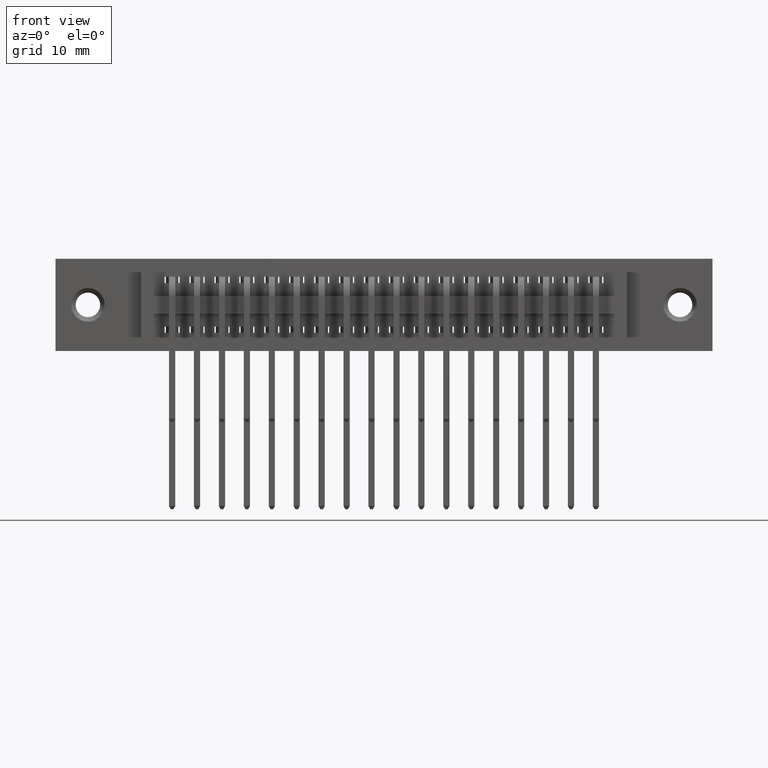
[diagram: clean part render]
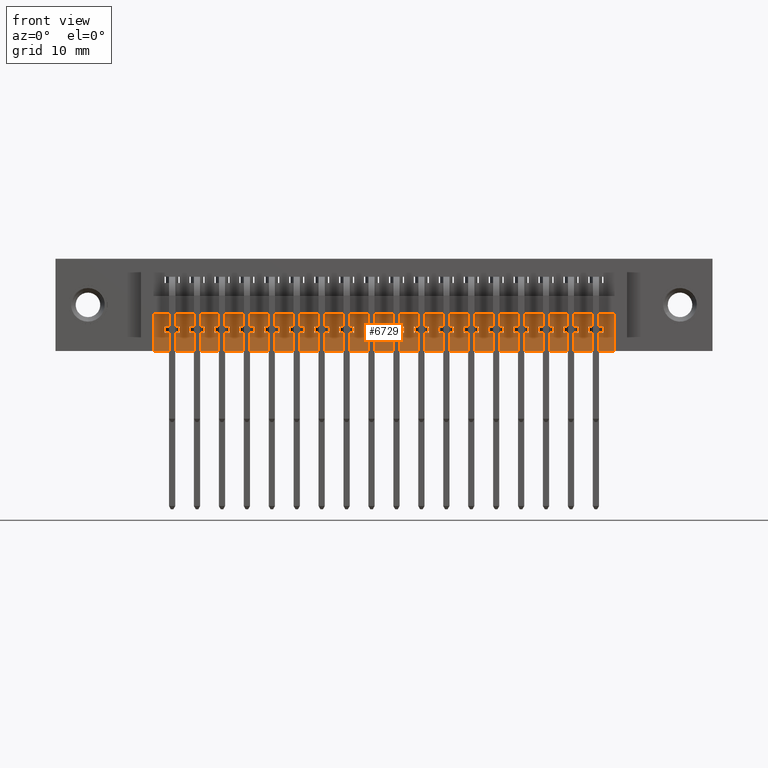
[diagram: same view with one face highlighted and labeled with its STEP entity id]
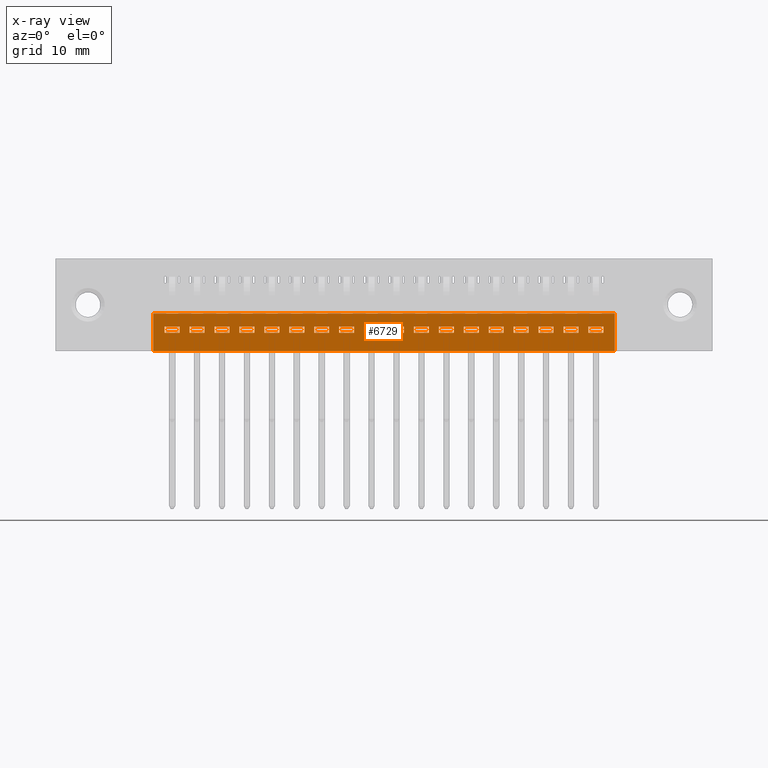
[diagram: x-ray of the same camera — body ghosted, the highlighted face saturated]
A machine part, front view. The second image highlights one B-rep face of the part: STEP entity #6729.
The next image is the same camera in x-ray: the body ghosted, the highlighted face saturated — about 0% of this face is hidden behind the body in this view.
In plain terms, the highlighted planar face has unit normal (0, -1, 0).
Its self-contained STEP definition (entity closure, byte-faithful):
#11 = DIRECTION ( 'NONE',  ( 1.000000000000000000, 0.0000000000000000000, 0.0000000000000000000 ) ) ;
#14 = CARTESIAN_POINT ( 'NONE',  ( 2.242499999999999700, 0.05000000000000000300, -0.2725000000000000200 ) ) ;
#49 = VERTEX_POINT ( 'NONE', #7004 ) ;
#50 = VERTEX_POINT ( 'NONE', #4705 ) ;
#57 = DIRECTION ( 'NONE',  ( 0.0000000000000000000, 0.0000000000000000000, 1.000000000000000000 ) ) ;
#142 = DIRECTION ( 'NONE',  ( 1.000000000000000000, 0.0000000000000000000, 0.0000000000000000000 ) ) ;
#175 = EDGE_CURVE ( 'NONE', #1350, #12171, #239, .T. ) ;
#176 = LINE ( 'NONE', #9727, #8347 ) ;
#186 = VERTEX_POINT ( 'NONE', #13152 ) ;
#209 = EDGE_CURVE ( 'NONE', #5521, #9478, #18262, .T. ) ;
#229 = VERTEX_POINT ( 'NONE', #9674 ) ;
#238 = EDGE_CURVE ( 'NONE', #17816, #20205, #14203, .T. ) ;
#239 = LINE ( 'NONE', #8412, #6916 ) ;
#245 = VECTOR ( 'NONE', #13434, 39.37007874015748100 ) ;
#283 = ORIENTED_EDGE ( 'NONE', *, *, #1574, .F. ) ;
#336 = VERTEX_POINT ( 'NONE', #7828 ) ;
#363 = CARTESIAN_POINT ( 'NONE',  ( 1.937500000000000000, 0.05000000000000001000, -0.2725000000000000200 ) ) ;
#415 = VECTOR ( 'NONE', #14157, 39.37007874015748100 ) ;
#416 = VECTOR ( 'NONE', #18612, 39.37007874015748100 ) ;
#437 = CARTESIAN_POINT ( 'NONE',  ( 2.242499999999999700, 0.05000000000000000300, -0.2974999999999999900 ) ) ;
#500 = VERTEX_POINT ( 'NONE', #11191 ) ;
#513 = ORIENTED_EDGE ( 'NONE', *, *, #7139, .T. ) ;
#534 = EDGE_CURVE ( 'NONE', #6998, #13294, #755, .T. ) ;
#541 = ORIENTED_EDGE ( 'NONE', *, *, #19457, .F. ) ;
#556 = CARTESIAN_POINT ( 'NONE',  ( 0.3924999999999996800, 0.05000000000000000300, -0.3700000000000000000 ) ) ;
#635 = VERTEX_POINT ( 'NONE', #1072 ) ;
#648 = VERTEX_POINT ( 'NONE', #3718 ) ;
#665 = CARTESIAN_POINT ( 'NONE',  ( 1.897500000000000000, 0.05000000000000000300, -0.2975000000000000400 ) ) ;
#670 = CARTESIAN_POINT ( 'NONE',  ( 1.197499999999999800, 0.05000000000000000300, -0.2975000000000001000 ) ) ;
#683 = ORIENTED_EDGE ( 'NONE', *, *, #19822, .F. ) ;
#688 = CARTESIAN_POINT ( 'NONE',  ( 2.242499999999999700, 0.05000000000000000300, -0.2975000000000001000 ) ) ;
#699 = DIRECTION ( 'NONE',  ( 0.0000000000000000000, -0.0000000000000000000, -1.000000000000000000 ) ) ;
#712 = CARTESIAN_POINT ( 'NONE',  ( 0.7974999999999998800, 0.05000000000000000300, -0.2975000000000001000 ) ) ;
#721 = VECTOR ( 'NONE', #18166, 39.37007874015748100 ) ;
#728 = CARTESIAN_POINT ( 'NONE',  ( 1.637500000000000000, 0.05000000000000014800, -0.2975000000000000400 ) ) ;
#755 = LINE ( 'NONE', #18534, #17057 ) ;
#756 = CARTESIAN_POINT ( 'NONE',  ( 1.237500000000000000, 0.05000000000000001000, -0.2725000000000000800 ) ) ;
#773 = ORIENTED_EDGE ( 'NONE', *, *, #1941, .T. ) ;
#800 = VERTEX_POINT ( 'NONE', #9468 ) ;
#820 = EDGE_CURVE ( 'NONE', #18408, #14449, #20356, .T. ) ;
#862 = VERTEX_POINT ( 'NONE', #3411 ) ;
#902 = ORIENTED_EDGE ( 'NONE', *, *, #534, .F. ) ;
#920 = VERTEX_POINT ( 'NONE', #1800 ) ;
#971 = VECTOR ( 'NONE', #11528, 39.37007874015748100 ) ;
#991 = VECTOR ( 'NONE', #11796, 39.37007874015748100 ) ;
#1018 = DIRECTION ( 'NONE',  ( 0.0000000000000000000, 0.0000000000000000000, 1.000000000000000000 ) ) ;
#1072 = CARTESIAN_POINT ( 'NONE',  ( 1.837499999999999900, 0.05000000000000001000, -0.2725000000000000200 ) ) ;
#1073 = CARTESIAN_POINT ( 'NONE',  ( 2.242499999999999700, 0.05000000000000000300, -0.3700000000000000000 ) ) ;
#1075 = EDGE_LOOP ( 'NONE', ( #4684, #10572, #3480, #11824 ) ) ;
#1214 = CARTESIAN_POINT ( 'NONE',  ( 1.137499999999999700, 0.05000000000000000300, -0.3700000000000000000 ) ) ;
#1258 = VECTOR ( 'NONE', #14234, 39.37007874015748100 ) ;
#1261 = FACE_BOUND ( 'NONE', #9703, .T. ) ;
#1273 = CARTESIAN_POINT ( 'NONE',  ( 1.097499999999999900, 0.05000000000000000300, -0.3700000000000000000 ) ) ;
#1282 = DIRECTION ( 'NONE',  ( -1.000000000000000000, 0.0000000000000000000, 0.0000000000000000000 ) ) ;
#1328 = VECTOR ( 'NONE', #13271, 39.37007874015748100 ) ;
#1339 = DIRECTION ( 'NONE',  ( -1.000000000000000000, 0.0000000000000000000, 0.0000000000000000000 ) ) ;
#1350 = VERTEX_POINT ( 'NONE', #7701 ) ;
#1389 = LINE ( 'NONE', #10275, #18089 ) ;
#1406 = LINE ( 'NONE', #15249, #9949 ) ;
#1486 = EDGE_CURVE ( 'NONE', #7322, #13627, #18455, .T. ) ;
#1491 = VECTOR ( 'NONE', #9221, 39.37007874015748100 ) ;
#1515 = EDGE_CURVE ( 'NONE', #14042, #7755, #13430, .T. ) ;
#1522 = CARTESIAN_POINT ( 'NONE',  ( 1.637500000000000000, 0.05000000000000001000, -0.2725000000000000200 ) ) ;
#1555 = ORIENTED_EDGE ( 'NONE', *, *, #18345, .F. ) ;
#1563 = VECTOR ( 'NONE', #10845, 39.37007874015748100 ) ;
#1574 = EDGE_CURVE ( 'NONE', #15970, #19710, #176, .T. ) ;
#1608 = CARTESIAN_POINT ( 'NONE',  ( 0.9974999999999999400, 0.05000000000000001000, -0.2725000000000000800 ) ) ;
#1625 = CARTESIAN_POINT ( 'NONE',  ( 2.242499999999999700, 0.05000000000000000300, -0.2975000000000000400 ) ) ;
#1627 = LINE ( 'NONE', #1273, #5497 ) ;
#1690 = LINE ( 'NONE', #556, #10233 ) ;
#1710 = CARTESIAN_POINT ( 'NONE',  ( 0.4974999999999998900, 0.05000000000000001000, -0.2725000000000000800 ) ) ;
#1722 = VERTEX_POINT ( 'NONE', #363 ) ;
#1745 = VECTOR ( 'NONE', #16139, 39.37007874015748100 ) ;
#1749 = LINE ( 'NONE', #17614, #11279 ) ;
#1754 = EDGE_CURVE ( 'NONE', #16164, #8424, #10045, .T. ) ;
#1763 = LINE ( 'NONE', #2475, #9334 ) ;
#1767 = FACE_BOUND ( 'NONE', #2970, .T. ) ;
#1798 = LINE ( 'NONE', #437, #2307 ) ;
#1800 = CARTESIAN_POINT ( 'NONE',  ( 1.497500000000000100, 0.05000000000000001000, -0.2725000000000000200 ) ) ;
#1818 = ORIENTED_EDGE ( 'NONE', *, *, #13885, .F. ) ;
#1835 = VERTEX_POINT ( 'NONE', #670 ) ;
#1870 = DIRECTION ( 'NONE',  ( 0.0000000000000000000, 0.0000000000000000000, 1.000000000000000000 ) ) ;
#1878 = ORIENTED_EDGE ( 'NONE', *, *, #16798, .F. ) ;
#1889 = CARTESIAN_POINT ( 'NONE',  ( 2.137500000000000200, 0.05000000000000001000, -0.2725000000000000200 ) ) ;
#1941 = EDGE_CURVE ( 'NONE', #14012, #14218, #6133, .T. ) ;
#1959 = VECTOR ( 'NONE', #5665, 39.37007874015748100 ) ;
#1984 = VECTOR ( 'NONE', #7387, 39.37007874015748100 ) ;
#2013 = DIRECTION ( 'NONE',  ( -1.000000000000000000, 0.0000000000000000000, 0.0000000000000000000 ) ) ;
#2114 = DIRECTION ( 'NONE',  ( 0.0000000000000000000, 0.0000000000000000000, 1.000000000000000000 ) ) ;
#2179 = EDGE_CURVE ( 'NONE', #1835, #648, #4852, .T. ) ;
#2229 = VECTOR ( 'NONE', #14434, 39.37007874015748100 ) ;
#2239 = CARTESIAN_POINT ( 'NONE',  ( 1.997499999999999800, 0.05000000000000000300, -0.3700000000000000000 ) ) ;
#2268 = FACE_BOUND ( 'NONE', #11870, .T. ) ;
#2300 = VERTEX_POINT ( 'NONE', #19182 ) ;
#2307 = VECTOR ( 'NONE', #10114, 39.37007874015748100 ) ;
#2389 = EDGE_LOOP ( 'NONE', ( #7831, #6652, #19174, #2482 ) ) ;
#2414 = ORIENTED_EDGE ( 'NONE', *, *, #19883, .F. ) ;
#2431 = VERTEX_POINT ( 'NONE', #728 ) ;
#2465 = ORIENTED_EDGE ( 'NONE', *, *, #11137, .F. ) ;
#2474 = CARTESIAN_POINT ( 'NONE',  ( 1.497500000000000100, 0.05000000000000000300, -0.3700000000000000000 ) ) ;
#2475 = CARTESIAN_POINT ( 'NONE',  ( 2.242499999999999700, 0.05000000000000000300, -0.2725000000000000200 ) ) ;
#2477 = LINE ( 'NONE', #4016, #1959 ) ;
#2482 = ORIENTED_EDGE ( 'NONE', *, *, #209, .F. ) ;
#2496 = ORIENTED_EDGE ( 'NONE', *, *, #9083, .F. ) ;
#2503 = LINE ( 'NONE', #5791, #1984 ) ;
#2544 = LINE ( 'NONE', #3376, #18702 ) ;
#2546 = DIRECTION ( 'NONE',  ( -1.000000000000000000, -0.0000000000000000000, -0.0000000000000000000 ) ) ;
#2551 = CARTESIAN_POINT ( 'NONE',  ( 0.6974999999999999000, 0.05000000000000000300, -0.2975000000000001000 ) ) ;
#2739 = DIRECTION ( 'NONE',  ( 0.0000000000000000000, 0.0000000000000000000, 1.000000000000000000 ) ) ;
#2798 = VECTOR ( 'NONE', #19408, 39.37007874015748100 ) ;
#2882 = CARTESIAN_POINT ( 'NONE',  ( 1.837499999999999900, 0.05000000000000000300, -0.3700000000000000000 ) ) ;
#2925 = VERTEX_POINT ( 'NONE', #10013 ) ;
#2970 = EDGE_LOOP ( 'NONE', ( #541, #7035, #5112, #902 ) ) ;
#2971 = LINE ( 'NONE', #6062, #19543 ) ;
#2982 = CARTESIAN_POINT ( 'NONE',  ( 1.597500000000000100, 0.05000000000000000300, -0.3700000000000000000 ) ) ;
#2995 = VECTOR ( 'NONE', #6612, 39.37007874015748100 ) ;
#3045 = DIRECTION ( 'NONE',  ( 0.0000000000000000000, 0.0000000000000000000, 1.000000000000000000 ) ) ;
#3113 = VERTEX_POINT ( 'NONE', #13584 ) ;
#3115 = VERTEX_POINT ( 'NONE', #18122 ) ;
#3156 = DIRECTION ( 'NONE',  ( -1.000000000000000000, 0.0000000000000000000, 0.0000000000000000000 ) ) ;
#3337 = CARTESIAN_POINT ( 'NONE',  ( 2.242499999999999700, 0.05000000000000000300, -0.2725000000000000200 ) ) ;
#3357 = DIRECTION ( 'NONE',  ( -1.000000000000000000, 0.0000000000000000000, 0.0000000000000000000 ) ) ;
#3376 = CARTESIAN_POINT ( 'NONE',  ( 2.242499999999999700, 0.05000000000000000300, -0.2975000000000001000 ) ) ;
#3411 = CARTESIAN_POINT ( 'NONE',  ( 1.697499999999999800, 0.05000000000000001000, -0.2725000000000000200 ) ) ;
#3417 = EDGE_CURVE ( 'NONE', #5910, #500, #13053, .T. ) ;
#3425 = CARTESIAN_POINT ( 'NONE',  ( 2.242499999999999700, 0.05000000000000000300, -0.2975000000000000400 ) ) ;
#3437 = DIRECTION ( 'NONE',  ( 1.000000000000000000, 0.0000000000000000000, 0.0000000000000000000 ) ) ;
#3456 = CARTESIAN_POINT ( 'NONE',  ( 2.097500000000000100, 0.05000000000000001000, -0.2725000000000000200 ) ) ;
#3480 = ORIENTED_EDGE ( 'NONE', *, *, #12489, .F. ) ;
#3569 = CARTESIAN_POINT ( 'NONE',  ( 1.737500000000000000, 0.05000000000000000300, -0.3700000000000000000 ) ) ;
#3633 = ORIENTED_EDGE ( 'NONE', *, *, #15417, .F. ) ;
#3653 = ORIENTED_EDGE ( 'NONE', *, *, #1754, .F. ) ;
#3671 = CARTESIAN_POINT ( 'NONE',  ( 1.337500000000000100, 0.05000000000000000300, -0.3700000000000000000 ) ) ;
#3718 = CARTESIAN_POINT ( 'NONE',  ( 1.197499999999999800, 0.05000000000000001000, -0.2725000000000000800 ) ) ;
#3732 = EDGE_CURVE ( 'NONE', #17131, #920, #15440, .T. ) ;
#3771 = LINE ( 'NONE', #9022, #7583 ) ;
#3911 = DIRECTION ( 'NONE',  ( 0.0000000000000000000, 0.0000000000000000000, 1.000000000000000000 ) ) ;
#3982 = ORIENTED_EDGE ( 'NONE', *, *, #18105, .F. ) ;
#3999 = CARTESIAN_POINT ( 'NONE',  ( 1.937500000000000000, 0.05000000000000000300, -0.3700000000000000000 ) ) ;
#4016 = CARTESIAN_POINT ( 'NONE',  ( 1.537500000000000100, 0.05000000000000000300, -0.3700000000000000000 ) ) ;
#4022 = ORIENTED_EDGE ( 'NONE', *, *, #8715, .F. ) ;
#4069 = CARTESIAN_POINT ( 'NONE',  ( 0.7974999999999998800, 0.05000000000000001000, -0.2725000000000000800 ) ) ;
#4075 = LINE ( 'NONE', #1073, #19108 ) ;
#4077 = LINE ( 'NONE', #11753, #16522 ) ;
#4094 = ORIENTED_EDGE ( 'NONE', *, *, #820, .F. ) ;
#4099 = CARTESIAN_POINT ( 'NONE',  ( 2.242499999999999700, 0.05000000000000000300, -0.2975000000000000400 ) ) ;
#4162 = DIRECTION ( 'NONE',  ( 0.0000000000000000000, 0.0000000000000000000, 1.000000000000000000 ) ) ;
#4242 = EDGE_CURVE ( 'NONE', #6755, #12111, #13996, .T. ) ;
#4331 = VERTEX_POINT ( 'NONE', #5982 ) ;
#4369 = CARTESIAN_POINT ( 'NONE',  ( 0.4374999999999998900, 0.05000000000000000300, -0.3700000000000000000 ) ) ;
#4407 = EDGE_CURVE ( 'NONE', #15259, #635, #19194, .T. ) ;
#4443 = CARTESIAN_POINT ( 'NONE',  ( 0.9374999999999997800, 0.05000000000000000300, -0.3700000000000000000 ) ) ;
#4538 = ORIENTED_EDGE ( 'NONE', *, *, #20013, .T. ) ;
#4623 = CARTESIAN_POINT ( 'NONE',  ( 2.242499999999999700, 0.05000000000000000300, -0.2725000000000000200 ) ) ;
#4656 = CARTESIAN_POINT ( 'NONE',  ( 0.3924999999999996800, 0.05000000000000000300, -0.2200000000000000000 ) ) ;
#4684 = ORIENTED_EDGE ( 'NONE', *, *, #10244, .F. ) ;
#4705 = CARTESIAN_POINT ( 'NONE',  ( 1.237500000000000000, 0.05000000000000014800, -0.2975000000000001000 ) ) ;
#4830 = VECTOR ( 'NONE', #5747, 39.37007874015748100 ) ;
#4852 = LINE ( 'NONE', #7945, #415 ) ;
#4876 = LINE ( 'NONE', #1214, #16778 ) ;
#4898 = CARTESIAN_POINT ( 'NONE',  ( 1.037499999999999900, 0.05000000000000000300, -0.3700000000000000000 ) ) ;
#4952 = LINE ( 'NONE', #18898, #12788 ) ;
#4999 = EDGE_LOOP ( 'NONE', ( #8009, #6278, #20210, #10725 ) ) ;
#5014 = DIRECTION ( 'NONE',  ( 0.0000000000000000000, 0.0000000000000000000, 1.000000000000000000 ) ) ;
#5049 = EDGE_CURVE ( 'NONE', #14963, #3115, #16342, .T. ) ;
#5112 = ORIENTED_EDGE ( 'NONE', *, *, #15151, .F. ) ;
#5126 = FACE_BOUND ( 'NONE', #6676, .T. ) ;
#5151 = CARTESIAN_POINT ( 'NONE',  ( 2.197499999999999800, 0.05000000000000000300, -0.3700000000000000000 ) ) ;
#5192 = CARTESIAN_POINT ( 'NONE',  ( 0.8374999999999999100, 0.05000000000000014800, -0.2975000000000001000 ) ) ;
#5195 = CARTESIAN_POINT ( 'NONE',  ( 1.037499999999999900, 0.05000000000000001000, -0.2725000000000000800 ) ) ;
#5200 = CARTESIAN_POINT ( 'NONE',  ( 2.097500000000000100, 0.05000000000000000300, -0.3700000000000000000 ) ) ;
#5233 = EDGE_CURVE ( 'NONE', #14433, #16164, #17055, .T. ) ;
#5246 = DIRECTION ( 'NONE',  ( 0.0000000000000000000, 0.0000000000000000000, 1.000000000000000000 ) ) ;
#5286 = ORIENTED_EDGE ( 'NONE', *, *, #7419, .T. ) ;
#5292 = CARTESIAN_POINT ( 'NONE',  ( 1.137499999999999700, 0.05000000000000014800, -0.2975000000000001000 ) ) ;
#5313 = LINE ( 'NONE', #11395, #13617 ) ;
#5346 = DIRECTION ( 'NONE',  ( 0.0000000000000000000, 0.0000000000000000000, 1.000000000000000000 ) ) ;
#5370 = VECTOR ( 'NONE', #5346, 39.37007874015748100 ) ;
#5497 = VECTOR ( 'NONE', #15495, 39.37007874015748100 ) ;
#5521 = VERTEX_POINT ( 'NONE', #665 ) ;
#5524 = EDGE_CURVE ( 'NONE', #17623, #1722, #8402, .T. ) ;
#5624 = LINE ( 'NONE', #16210, #13414 ) ;
#5637 = VECTOR ( 'NONE', #3156, 39.37007874015748100 ) ;
#5640 = FACE_BOUND ( 'NONE', #6265, .T. ) ;
#5665 = DIRECTION ( 'NONE',  ( 0.0000000000000000000, 0.0000000000000000000, 1.000000000000000000 ) ) ;
#5682 = VECTOR ( 'NONE', #17283, 39.37007874015748100 ) ;
#5683 = ORIENTED_EDGE ( 'NONE', *, *, #7353, .T. ) ;
#5747 = DIRECTION ( 'NONE',  ( 1.000000000000000000, 0.0000000000000000000, 0.0000000000000000000 ) ) ;
#5791 = CARTESIAN_POINT ( 'NONE',  ( 0.7374999999999997100, 0.05000000000000000300, -0.3700000000000000000 ) ) ;
#5862 = LINE ( 'NONE', #4443, #1491 ) ;
#5864 = CARTESIAN_POINT ( 'NONE',  ( 2.242499999999999700, 0.05000000000000000300, -0.3700000000000000000 ) ) ;
#5866 = LINE ( 'NONE', #10590, #13154 ) ;
#5872 = CARTESIAN_POINT ( 'NONE',  ( 0.3924999999999996800, 0.05000000000000000300, -0.2200000000000000000 ) ) ;
#5894 = EDGE_CURVE ( 'NONE', #12460, #7322, #13963, .T. ) ;
#5910 = VERTEX_POINT ( 'NONE', #1608 ) ;
#5913 = DIRECTION ( 'NONE',  ( -1.000000000000000000, 0.0000000000000000000, 0.0000000000000000000 ) ) ;
#5982 = CARTESIAN_POINT ( 'NONE',  ( 2.097500000000000100, 0.05000000000000000300, -0.2975000000000000400 ) ) ;
#6062 = CARTESIAN_POINT ( 'NONE',  ( 2.242499999999999700, 0.05000000000000000300, -0.2725000000000000800 ) ) ;
#6133 = LINE ( 'NONE', #5872, #13413 ) ;
#6159 = FACE_BOUND ( 'NONE', #1075, .T. ) ;
#6192 = CARTESIAN_POINT ( 'NONE',  ( 1.397500000000000000, 0.05000000000000001000, -0.2725000000000000800 ) ) ;
#6204 = ORIENTED_EDGE ( 'NONE', *, *, #12380, .T. ) ;
#6262 = ORIENTED_EDGE ( 'NONE', *, *, #16706, .F. ) ;
#6264 = VECTOR ( 'NONE', #14836, 39.37007874015748100 ) ;
#6265 = EDGE_LOOP ( 'NONE', ( #2414, #4538, #10718, #6585 ) ) ;
#6278 = ORIENTED_EDGE ( 'NONE', *, *, #238, .T. ) ;
#6284 = ORIENTED_EDGE ( 'NONE', *, *, #15687, .F. ) ;
#6294 = CARTESIAN_POINT ( 'NONE',  ( 2.197499999999999800, 0.05000000000000000300, -0.2974999999999999900 ) ) ;
#6322 = LINE ( 'NONE', #8403, #17199 ) ;
#6336 = CARTESIAN_POINT ( 'NONE',  ( 1.897500000000000000, 0.05000000000000000300, -0.3700000000000000000 ) ) ;
#6340 = CARTESIAN_POINT ( 'NONE',  ( 2.242499999999999700, 0.05000000000000000300, -0.2975000000000000400 ) ) ;
#6366 = VERTEX_POINT ( 'NONE', #1522 ) ;
#6450 = CARTESIAN_POINT ( 'NONE',  ( 2.037500000000000100, 0.05000000000000014800, -0.2975000000000000400 ) ) ;
#6475 = EDGE_LOOP ( 'NONE', ( #2465, #13026, #6262, #7967 ) ) ;
#6495 = EDGE_CURVE ( 'NONE', #15295, #18223, #2544, .T. ) ;
#6556 = VERTEX_POINT ( 'NONE', #16116 ) ;
#6585 = ORIENTED_EDGE ( 'NONE', *, *, #13581, .F. ) ;
#6612 = DIRECTION ( 'NONE',  ( -1.000000000000000000, 0.0000000000000000000, 0.0000000000000000000 ) ) ;
#6622 = FACE_BOUND ( 'NONE', #7054, .T. ) ;
#6652 = ORIENTED_EDGE ( 'NONE', *, *, #4407, .T. ) ;
#6676 = EDGE_LOOP ( 'NONE', ( #2496, #513, #13579, #4094 ) ) ;
#6703 = CARTESIAN_POINT ( 'NONE',  ( 1.337500000000000100, 0.05000000000000001000, -0.2725000000000000800 ) ) ;
#6729 = ADVANCED_FACE ( 'NONE', ( #19876, #18911, #10819, #6622, #2268, #18458, #14393, #10310, #6159, #1767, #17972, #13929, #9819, #5640, #1261, #17495, #13437, #9337, #5126 ), #11849, .T. ) ;
#6740 = CARTESIAN_POINT ( 'NONE',  ( 0.5974999999999998100, 0.05000000000000000300, -0.3700000000000000000 ) ) ;
#6755 = VERTEX_POINT ( 'NONE', #18046 ) ;
#6757 = VERTEX_POINT ( 'NONE', #8849 ) ;
#6806 = CARTESIAN_POINT ( 'NONE',  ( 2.242499999999999700, 0.05000000000000000300, -0.2975000000000001000 ) ) ;
#6916 = VECTOR ( 'NONE', #13521, 39.37007874015748100 ) ;
#6951 = CARTESIAN_POINT ( 'NONE',  ( 1.737500000000000000, 0.05000000000000014800, -0.2975000000000000400 ) ) ;
#6958 = CARTESIAN_POINT ( 'NONE',  ( 1.637500000000000000, 0.05000000000000000300, -0.3700000000000000000 ) ) ;
#6971 = EDGE_CURVE ( 'NONE', #7148, #18513, #4876, .T. ) ;
#6998 = VERTEX_POINT ( 'NONE', #17046 ) ;
#7004 = CARTESIAN_POINT ( 'NONE',  ( 2.137500000000000200, 0.05000000000000014800, -0.2974999999999999900 ) ) ;
#7029 = EDGE_LOOP ( 'NONE', ( #6284, #5286, #18387, #8291 ) ) ;
#7035 = ORIENTED_EDGE ( 'NONE', *, *, #10677, .T. ) ;
#7054 = EDGE_LOOP ( 'NONE', ( #16560, #18479, #17755, #11094 ) ) ;
#7064 = CARTESIAN_POINT ( 'NONE',  ( 0.8974999999999999600, 0.05000000000000001000, -0.2725000000000000800 ) ) ;
#7071 = VECTOR ( 'NONE', #10490, 39.37007874015748100 ) ;
#7073 = EDGE_CURVE ( 'NONE', #15295, #186, #15332, .T. ) ;
#7081 = DIRECTION ( 'NONE',  ( 0.0000000000000000000, 0.0000000000000000000, 1.000000000000000000 ) ) ;
#7118 = VECTOR ( 'NONE', #8276, 39.37007874015748100 ) ;
#7139 = EDGE_CURVE ( 'NONE', #49, #13744, #1749, .T. ) ;
#7148 = VERTEX_POINT ( 'NONE', #5292 ) ;
#7189 = VERTEX_POINT ( 'NONE', #11614 ) ;
#7196 = ORIENTED_EDGE ( 'NONE', *, *, #11158, .T. ) ;
#7198 = VECTOR ( 'NONE', #5246, 39.37007874015748100 ) ;
#7217 = CARTESIAN_POINT ( 'NONE',  ( 2.242499999999999700, 0.05000000000000000300, -0.3700000000000000000 ) ) ;
#7235 = EDGE_CURVE ( 'NONE', #3113, #7189, #4077, .T. ) ;
#7238 = EDGE_LOOP ( 'NONE', ( #18734, #7196, #19464, #3653 ) ) ;
#7322 = VERTEX_POINT ( 'NONE', #4069 ) ;
#7353 = EDGE_CURVE ( 'NONE', #15183, #13627, #2503, .T. ) ;
#7364 = CARTESIAN_POINT ( 'NONE',  ( 0.4974999999999998300, 0.05000000000000000300, -0.3700000000000000000 ) ) ;
#7372 = CARTESIAN_POINT ( 'NONE',  ( 0.5374999999999999800, 0.05000000000000000300, -0.3700000000000000000 ) ) ;
#7387 = DIRECTION ( 'NONE',  ( 0.0000000000000000000, 0.0000000000000000000, 1.000000000000000000 ) ) ;
#7407 = EDGE_CURVE ( 'NONE', #12752, #14954, #5866, .T. ) ;
#7419 = EDGE_CURVE ( 'NONE', #19549, #3115, #17697, .T. ) ;
#7451 = VECTOR ( 'NONE', #15458, 39.37007874015748100 ) ;
#7505 = LINE ( 'NONE', #9523, #19249 ) ;
#7583 = VECTOR ( 'NONE', #10591, 39.37007874015748100 ) ;
#7596 = LINE ( 'NONE', #4623, #14541 ) ;
#7656 = VECTOR ( 'NONE', #15671, 39.37007874015748100 ) ;
#7701 = CARTESIAN_POINT ( 'NONE',  ( 1.337500000000000100, 0.05000000000000014800, -0.2975000000000001000 ) ) ;
#7755 = VERTEX_POINT ( 'NONE', #5195 ) ;
#7828 = CARTESIAN_POINT ( 'NONE',  ( 1.537500000000000100, 0.05000000000000014800, -0.2975000000000000400 ) ) ;
#7831 = ORIENTED_EDGE ( 'NONE', *, *, #20049, .F. ) ;
#7893 = VECTOR ( 'NONE', #1870, 39.37007874015748100 ) ;
#7935 = ORIENTED_EDGE ( 'NONE', *, *, #12224, .F. ) ;
#7945 = CARTESIAN_POINT ( 'NONE',  ( 1.197499999999999800, 0.05000000000000000300, -0.3700000000000000000 ) ) ;
#7956 = DIRECTION ( 'NONE',  ( 0.0000000000000000000, 0.0000000000000000000, 1.000000000000000000 ) ) ;
#7967 = ORIENTED_EDGE ( 'NONE', *, *, #3732, .F. ) ;
#7993 = EDGE_CURVE ( 'NONE', #6556, #14963, #19330, .T. ) ;
#8009 = ORIENTED_EDGE ( 'NONE', *, *, #9449, .F. ) ;
#8020 = DIRECTION ( 'NONE',  ( 1.000000000000000000, 0.0000000000000000000, 0.0000000000000000000 ) ) ;
#8088 = VECTOR ( 'NONE', #3045, 39.37007874015748100 ) ;
#8135 = VECTOR ( 'NONE', #5014, 39.37007874015748100 ) ;
#8137 = ORIENTED_EDGE ( 'NONE', *, *, #175, .F. ) ;
#8233 = DIRECTION ( 'NONE',  ( -1.000000000000000000, 0.0000000000000000000, 0.0000000000000000000 ) ) ;
#8276 = DIRECTION ( 'NONE',  ( 0.0000000000000000000, 0.0000000000000000000, 1.000000000000000000 ) ) ;
#8291 = ORIENTED_EDGE ( 'NONE', *, *, #7993, .F. ) ;
#8347 = VECTOR ( 'NONE', #11, 39.37007874015748100 ) ;
#8402 = LINE ( 'NONE', #3999, #8893 ) ;
#8403 = CARTESIAN_POINT ( 'NONE',  ( 0.9974999999999999400, 0.05000000000000000300, -0.3700000000000000000 ) ) ;
#8412 = CARTESIAN_POINT ( 'NONE',  ( 2.242499999999999700, 0.05000000000000000300, -0.2975000000000001000 ) ) ;
#8424 = VERTEX_POINT ( 'NONE', #7064 ) ;
#8482 = CARTESIAN_POINT ( 'NONE',  ( 1.997499999999999800, 0.05000000000000001000, -0.2725000000000000200 ) ) ;
#8528 = VERTEX_POINT ( 'NONE', #10476 ) ;
#8631 = CARTESIAN_POINT ( 'NONE',  ( 2.242499999999999700, 0.05000000000000000300, -0.2725000000000000200 ) ) ;
#8715 = EDGE_CURVE ( 'NONE', #10388, #2925, #7596, .T. ) ;
#8760 = CARTESIAN_POINT ( 'NONE',  ( 0.7374999999999998200, 0.05000000000000014800, -0.2975000000000001000 ) ) ;
#8761 = LINE ( 'NONE', #10428, #16468 ) ;
#8849 = CARTESIAN_POINT ( 'NONE',  ( 1.097499999999999900, 0.05000000000000000300, -0.2975000000000001000 ) ) ;
#8873 = VECTOR ( 'NONE', #11231, 39.37007874015748100 ) ;
#8879 = ORIENTED_EDGE ( 'NONE', *, *, #15995, .F. ) ;
#8887 = CARTESIAN_POINT ( 'NONE',  ( 2.037500000000000100, 0.05000000000000000300, -0.3700000000000000000 ) ) ;
#8893 = VECTOR ( 'NONE', #13420, 39.37007874015748100 ) ;
#9022 = CARTESIAN_POINT ( 'NONE',  ( 2.242499999999999700, 0.05000000000000000300, -0.2975000000000000400 ) ) ;
#9056 = LINE ( 'NONE', #14079, #8088 ) ;
#9076 = LINE ( 'NONE', #3671, #5370 ) ;
#9083 = EDGE_CURVE ( 'NONE', #49, #18408, #1798, .T. ) ;
#9221 = DIRECTION ( 'NONE',  ( 0.0000000000000000000, 0.0000000000000000000, 1.000000000000000000 ) ) ;
#9234 = VERTEX_POINT ( 'NONE', #5864 ) ;
#9312 = CARTESIAN_POINT ( 'NONE',  ( 0.8374999999999999100, 0.05000000000000001000, -0.2725000000000000800 ) ) ;
#9334 = VECTOR ( 'NONE', #10466, 39.37007874015748100 ) ;
#9337 = FACE_BOUND ( 'NONE', #4999, .T. ) ;
#9362 = CARTESIAN_POINT ( 'NONE',  ( 0.6974999999999999000, 0.05000000000000001000, -0.2725000000000000800 ) ) ;
#9380 = CARTESIAN_POINT ( 'NONE',  ( 2.242499999999999700, 0.05000000000000000300, -0.2725000000000000200 ) ) ;
#9386 = CARTESIAN_POINT ( 'NONE',  ( 0.9974999999999999400, 0.05000000000000000300, -0.2975000000000001000 ) ) ;
#9387 = EDGE_CURVE ( 'NONE', #8528, #10388, #12293, .T. ) ;
#9415 = DIRECTION ( 'NONE',  ( 0.0000000000000000000, 0.0000000000000000000, 1.000000000000000000 ) ) ;
#9449 = EDGE_CURVE ( 'NONE', #17816, #4331, #11310, .T. ) ;
#9458 = EDGE_LOOP ( 'NONE', ( #13526, #17415, #4022, #14430 ) ) ;
#9468 = CARTESIAN_POINT ( 'NONE',  ( 1.997499999999999800, 0.05000000000000000300, -0.2975000000000000400 ) ) ;
#9478 = VERTEX_POINT ( 'NONE', #14146 ) ;
#9523 = CARTESIAN_POINT ( 'NONE',  ( 2.242499999999999700, 0.05000000000000000300, -0.2975000000000001000 ) ) ;
#9530 = ORIENTED_EDGE ( 'NONE', *, *, #7235, .F. ) ;
#9536 = LINE ( 'NONE', #16579, #16255 ) ;
#9540 = ORIENTED_EDGE ( 'NONE', *, *, #15654, .F. ) ;
#9547 = CARTESIAN_POINT ( 'NONE',  ( 1.437500000000000200, 0.05000000000000014800, -0.2975000000000000400 ) ) ;
#9568 = CARTESIAN_POINT ( 'NONE',  ( 0.5374999999999999800, 0.05000000000000001000, -0.2725000000000000800 ) ) ;
#9579 = LINE ( 'NONE', #9959, #971 ) ;
#9631 = EDGE_CURVE ( 'NONE', #4331, #9658, #12031, .T. ) ;
#9658 = VERTEX_POINT ( 'NONE', #3456 ) ;
#9674 = CARTESIAN_POINT ( 'NONE',  ( 1.697499999999999800, 0.05000000000000000300, -0.2975000000000000400 ) ) ;
#9703 = EDGE_LOOP ( 'NONE', ( #16751, #16904, #15716, #9530 ) ) ;
#9716 = DIRECTION ( 'NONE',  ( 1.000000000000000000, 0.0000000000000000000, 0.0000000000000000000 ) ) ;
#9727 = CARTESIAN_POINT ( 'NONE',  ( 2.242499999999999700, 0.05000000000000000300, -0.2975000000000001000 ) ) ;
#9774 = EDGE_CURVE ( 'NONE', #17097, #9234, #13688, .T. ) ;
#9819 = FACE_BOUND ( 'NONE', #9458, .T. ) ;
#9876 = LINE ( 'NONE', #17878, #1328 ) ;
#9883 = VECTOR ( 'NONE', #19652, 39.37007874015748100 ) ;
#9949 = VECTOR ( 'NONE', #10714, 39.37007874015748100 ) ;
#9959 = CARTESIAN_POINT ( 'NONE',  ( 2.242499999999999700, 0.05000000000000000300, -0.2975000000000001000 ) ) ;
#9983 = VECTOR ( 'NONE', #16009, 39.37007874015748100 ) ;
#10013 = CARTESIAN_POINT ( 'NONE',  ( 1.537500000000000100, 0.05000000000000001000, -0.2725000000000000200 ) ) ;
#10044 = VERTEX_POINT ( 'NONE', #6192 ) ;
#10045 = LINE ( 'NONE', #19195, #17712 ) ;
#10101 = VECTOR ( 'NONE', #7081, 39.37007874015748100 ) ;
#10114 = DIRECTION ( 'NONE',  ( 1.000000000000000000, 0.0000000000000000000, 0.0000000000000000000 ) ) ;
#10233 = VECTOR ( 'NONE', #11795, 39.37007874015748100 ) ;
#10244 = EDGE_CURVE ( 'NONE', #7148, #1835, #9579, .T. ) ;
#10267 = CARTESIAN_POINT ( 'NONE',  ( 2.242499999999999700, 0.05000000000000000300, -0.2725000000000000200 ) ) ;
#10275 = CARTESIAN_POINT ( 'NONE',  ( 1.397500000000000000, 0.05000000000000000300, -0.3700000000000000000 ) ) ;
#10278 = EDGE_CURVE ( 'NONE', #1350, #17945, #9076, .T. ) ;
#10310 = FACE_BOUND ( 'NONE', #13110, .T. ) ;
#10339 = AXIS2_PLACEMENT_3D ( 'NONE', #7217, #10351, #699 ) ;
#10351 = DIRECTION ( 'NONE',  ( 0.0000000000000000000, -1.000000000000000000, 0.0000000000000000000 ) ) ;
#10372 = LINE ( 'NONE', #6958, #18035 ) ;
#10388 = VERTEX_POINT ( 'NONE', #19447 ) ;
#10406 = CARTESIAN_POINT ( 'NONE',  ( 2.242499999999999700, 0.05000000000000000300, -0.2724999999999999600 ) ) ;
#10422 = LINE ( 'NONE', #8631, #6264 ) ;
#10428 = CARTESIAN_POINT ( 'NONE',  ( 2.242499999999999700, 0.05000000000000000300, -0.2725000000000000200 ) ) ;
#10466 = DIRECTION ( 'NONE',  ( -1.000000000000000000, 0.0000000000000000000, 0.0000000000000000000 ) ) ;
#10476 = CARTESIAN_POINT ( 'NONE',  ( 1.597500000000000100, 0.05000000000000000300, -0.2975000000000000400 ) ) ;
#10490 = DIRECTION ( 'NONE',  ( 0.0000000000000000000, 0.0000000000000000000, 1.000000000000000000 ) ) ;
#10511 = EDGE_CURVE ( 'NONE', #10867, #7755, #20081, .T. ) ;
#10551 = EDGE_CURVE ( 'NONE', #9234, #14012, #4075, .T. ) ;
#10572 = ORIENTED_EDGE ( 'NONE', *, *, #6971, .T. ) ;
#10587 = CARTESIAN_POINT ( 'NONE',  ( 1.037499999999999900, 0.05000000000000014800, -0.2975000000000001000 ) ) ;
#10590 = CARTESIAN_POINT ( 'NONE',  ( 1.437500000000000200, 0.05000000000000000300, -0.3700000000000000000 ) ) ;
#10591 = DIRECTION ( 'NONE',  ( 1.000000000000000000, 0.0000000000000000000, 0.0000000000000000000 ) ) ;
#10677 = EDGE_CURVE ( 'NONE', #50, #11145, #16755, .T. ) ;
#10714 = DIRECTION ( 'NONE',  ( -1.000000000000000000, 0.0000000000000000000, 0.0000000000000000000 ) ) ;
#10718 = ORIENTED_EDGE ( 'NONE', *, *, #17666, .F. ) ;
#10725 = ORIENTED_EDGE ( 'NONE', *, *, #9631, .F. ) ;
#10819 = FACE_BOUND ( 'NONE', #17419, .T. ) ;
#10844 = DIRECTION ( 'NONE',  ( -1.000000000000000000, 0.0000000000000000000, 0.0000000000000000000 ) ) ;
#10845 = DIRECTION ( 'NONE',  ( 0.0000000000000000000, 0.0000000000000000000, 1.000000000000000000 ) ) ;
#10867 = VERTEX_POINT ( 'NONE', #11376 ) ;
#11094 = ORIENTED_EDGE ( 'NONE', *, *, #16003, .F. ) ;
#11137 = EDGE_CURVE ( 'NONE', #12752, #17131, #17218, .T. ) ;
#11145 = VERTEX_POINT ( 'NONE', #756 ) ;
#11158 = EDGE_CURVE ( 'NONE', #14433, #18336, #9536, .T. ) ;
#11191 = CARTESIAN_POINT ( 'NONE',  ( 0.9374999999999998900, 0.05000000000000001000, -0.2725000000000000800 ) ) ;
#11208 = CARTESIAN_POINT ( 'NONE',  ( 0.7974999999999998800, 0.05000000000000000300, -0.3700000000000000000 ) ) ;
#11231 = DIRECTION ( 'NONE',  ( 1.000000000000000000, 0.0000000000000000000, 0.0000000000000000000 ) ) ;
#11260 = ORIENTED_EDGE ( 'NONE', *, *, #5524, .T. ) ;
#11279 = VECTOR ( 'NONE', #13073, 39.37007874015748100 ) ;
#11288 = LINE ( 'NONE', #10267, #2798 ) ;
#11310 = LINE ( 'NONE', #6340, #7656 ) ;
#11376 = CARTESIAN_POINT ( 'NONE',  ( 1.097499999999999900, 0.05000000000000001000, -0.2725000000000000800 ) ) ;
#11395 = CARTESIAN_POINT ( 'NONE',  ( 2.242499999999999700, 0.05000000000000000300, -0.2725000000000000200 ) ) ;
#11423 = ORIENTED_EDGE ( 'NONE', *, *, #1515, .T. ) ;
#11528 = DIRECTION ( 'NONE',  ( 1.000000000000000000, 0.0000000000000000000, 0.0000000000000000000 ) ) ;
#11614 = CARTESIAN_POINT ( 'NONE',  ( 1.797499999999999900, 0.05000000000000001000, -0.2725000000000000200 ) ) ;
#11633 = ORIENTED_EDGE ( 'NONE', *, *, #3417, .F. ) ;
#11753 = CARTESIAN_POINT ( 'NONE',  ( 1.797499999999999900, 0.05000000000000000300, -0.3700000000000000000 ) ) ;
#11795 = DIRECTION ( 'NONE',  ( -0.0000000000000000000, -0.0000000000000000000, -1.000000000000000000 ) ) ;
#11796 = DIRECTION ( 'NONE',  ( 1.000000000000000000, 0.0000000000000000000, 0.0000000000000000000 ) ) ;
#11824 = ORIENTED_EDGE ( 'NONE', *, *, #2179, .F. ) ;
#11849 = PLANE ( 'NONE',  #10339 ) ;
#11861 = EDGE_CURVE ( 'NONE', #336, #8528, #3771, .T. ) ;
#11866 = VECTOR ( 'NONE', #4162, 39.37007874015748100 ) ;
#11870 = EDGE_LOOP ( 'NONE', ( #8879, #5683, #14908, #19912 ) ) ;
#11994 = VECTOR ( 'NONE', #5913, 39.37007874015748100 ) ;
#12018 = ORIENTED_EDGE ( 'NONE', *, *, #17153, .F. ) ;
#12031 = LINE ( 'NONE', #5200, #7893 ) ;
#12071 = DIRECTION ( 'NONE',  ( -1.000000000000000000, 0.0000000000000000000, 0.0000000000000000000 ) ) ;
#12079 = VECTOR ( 'NONE', #19557, 39.37007874015748100 ) ;
#12095 = CARTESIAN_POINT ( 'NONE',  ( 2.242499999999999700, 0.05000000000000000300, -0.2200000000000000000 ) ) ;
#12111 = VERTEX_POINT ( 'NONE', #9568 ) ;
#12171 = VERTEX_POINT ( 'NONE', #14268 ) ;
#12200 = LINE ( 'NONE', #17659, #19313 ) ;
#12224 = EDGE_CURVE ( 'NONE', #19993, #1722, #5313, .T. ) ;
#12293 = LINE ( 'NONE', #2982, #19064 ) ;
#12319 = EDGE_CURVE ( 'NONE', #15967, #186, #12200, .T. ) ;
#12380 = EDGE_CURVE ( 'NONE', #14218, #17097, #1690, .T. ) ;
#12385 = EDGE_LOOP ( 'NONE', ( #683, #11260, #7935, #1818 ) ) ;
#12460 = VERTEX_POINT ( 'NONE', #712 ) ;
#12489 = EDGE_CURVE ( 'NONE', #648, #18513, #8761, .T. ) ;
#12491 = CARTESIAN_POINT ( 'NONE',  ( 0.9374999999999998900, 0.05000000000000014800, -0.2975000000000001000 ) ) ;
#12560 = CARTESIAN_POINT ( 'NONE',  ( 2.242499999999999700, 0.05000000000000000300, -0.2975000000000001000 ) ) ;
#12608 = VECTOR ( 'NONE', #3357, 39.37007874015748100 ) ;
#12699 = CARTESIAN_POINT ( 'NONE',  ( 0.7374999999999998200, 0.05000000000000001000, -0.2725000000000000800 ) ) ;
#12703 = VECTOR ( 'NONE', #9415, 39.37007874015748100 ) ;
#12752 = VERTEX_POINT ( 'NONE', #9547 ) ;
#12763 = ORIENTED_EDGE ( 'NONE', *, *, #9774, .T. ) ;
#12764 = CARTESIAN_POINT ( 'NONE',  ( 2.242499999999999700, 0.05000000000000000300, -0.2975000000000001000 ) ) ;
#12788 = VECTOR ( 'NONE', #8233, 39.37007874015748100 ) ;
#12791 = VECTOR ( 'NONE', #142, 39.37007874015748100 ) ;
#13026 = ORIENTED_EDGE ( 'NONE', *, *, #7407, .T. ) ;
#13053 = LINE ( 'NONE', #14, #12608 ) ;
#13073 = DIRECTION ( 'NONE',  ( 0.0000000000000000000, 0.0000000000000000000, 1.000000000000000000 ) ) ;
#13110 = EDGE_LOOP ( 'NONE', ( #17157, #11423, #13306, #1555 ) ) ;
#13152 = CARTESIAN_POINT ( 'NONE',  ( 0.6374999999999998400, 0.05000000000000001000, -0.2725000000000000800 ) ) ;
#13154 = VECTOR ( 'NONE', #1018, 39.37007874015748100 ) ;
#13253 = EDGE_LOOP ( 'NONE', ( #12763, #17764, #773, #6204 ) ) ;
#13271 = DIRECTION ( 'NONE',  ( 1.000000000000000000, 0.0000000000000000000, 0.0000000000000000000 ) ) ;
#13294 = VERTEX_POINT ( 'NONE', #16506 ) ;
#13306 = ORIENTED_EDGE ( 'NONE', *, *, #10511, .F. ) ;
#13413 = VECTOR ( 'NONE', #2546, 39.37007874015748100 ) ;
#13414 = VECTOR ( 'NONE', #17735, 39.37007874015748100 ) ;
#13420 = DIRECTION ( 'NONE',  ( 0.0000000000000000000, 0.0000000000000000000, 1.000000000000000000 ) ) ;
#13430 = LINE ( 'NONE', #4898, #1258 ) ;
#13434 = DIRECTION ( 'NONE',  ( 1.000000000000000000, 0.0000000000000000000, 0.0000000000000000000 ) ) ;
#13437 = FACE_BOUND ( 'NONE', #12385, .T. ) ;
#13521 = DIRECTION ( 'NONE',  ( 1.000000000000000000, 0.0000000000000000000, 0.0000000000000000000 ) ) ;
#13526 = ORIENTED_EDGE ( 'NONE', *, *, #11861, .F. ) ;
#13579 = ORIENTED_EDGE ( 'NONE', *, *, #19490, .F. ) ;
#13581 = EDGE_CURVE ( 'NONE', #229, #862, #20222, .T. ) ;
#13584 = CARTESIAN_POINT ( 'NONE',  ( 1.797499999999999900, 0.05000000000000000300, -0.2975000000000000400 ) ) ;
#13610 = EDGE_CURVE ( 'NONE', #14042, #6757, #7505, .T. ) ;
#13617 = VECTOR ( 'NONE', #14400, 39.37007874015748100 ) ;
#13626 = CARTESIAN_POINT ( 'NONE',  ( 1.837499999999999900, 0.05000000000000014800, -0.2975000000000000400 ) ) ;
#13627 = VERTEX_POINT ( 'NONE', #12699 ) ;
#13675 = ORIENTED_EDGE ( 'NONE', *, *, #4242, .T. ) ;
#13679 = CARTESIAN_POINT ( 'NONE',  ( 2.037500000000000100, 0.05000000000000001000, -0.2725000000000000200 ) ) ;
#13688 = LINE ( 'NONE', #19379, #991 ) ;
#13691 = ORIENTED_EDGE ( 'NONE', *, *, #16768, .F. ) ;
#13744 = VERTEX_POINT ( 'NONE', #1889 ) ;
#13786 = ORIENTED_EDGE ( 'NONE', *, *, #15887, .T. ) ;
#13846 = CARTESIAN_POINT ( 'NONE',  ( 2.242499999999999700, 0.05000000000000000300, -0.2725000000000000800 ) ) ;
#13885 = EDGE_CURVE ( 'NONE', #800, #19993, #14964, .T. ) ;
#13929 = FACE_BOUND ( 'NONE', #6475, .T. ) ;
#13963 = LINE ( 'NONE', #11208, #5682 ) ;
#13968 = VECTOR ( 'NONE', #9716, 39.37007874015748100 ) ;
#13982 = DIRECTION ( 'NONE',  ( 0.0000000000000000000, 0.0000000000000000000, 1.000000000000000000 ) ) ;
#13996 = LINE ( 'NONE', #7372, #9883 ) ;
#14012 = VERTEX_POINT ( 'NONE', #12095 ) ;
#14014 = DIRECTION ( 'NONE',  ( 0.0000000000000000000, 0.0000000000000000000, 1.000000000000000000 ) ) ;
#14042 = VERTEX_POINT ( 'NONE', #10587 ) ;
#14079 = CARTESIAN_POINT ( 'NONE',  ( 0.6974999999999999000, 0.05000000000000000300, -0.3700000000000000000 ) ) ;
#14146 = CARTESIAN_POINT ( 'NONE',  ( 1.897500000000000000, 0.05000000000000001000, -0.2725000000000000200 ) ) ;
#14152 = VECTOR ( 'NONE', #1339, 39.37007874015748100 ) ;
#14157 = DIRECTION ( 'NONE',  ( 0.0000000000000000000, 0.0000000000000000000, 1.000000000000000000 ) ) ;
#14177 = CARTESIAN_POINT ( 'NONE',  ( 2.242499999999999700, 0.05000000000000000300, -0.2725000000000000800 ) ) ;
#14203 = LINE ( 'NONE', #8887, #1563 ) ;
#14218 = VERTEX_POINT ( 'NONE', #4656 ) ;
#14234 = DIRECTION ( 'NONE',  ( 0.0000000000000000000, 0.0000000000000000000, 1.000000000000000000 ) ) ;
#14268 = CARTESIAN_POINT ( 'NONE',  ( 1.397500000000000000, 0.05000000000000000300, -0.2975000000000001000 ) ) ;
#14355 = LINE ( 'NONE', #3425, #2229 ) ;
#14356 = CARTESIAN_POINT ( 'NONE',  ( 1.137499999999999700, 0.05000000000000001000, -0.2725000000000000800 ) ) ;
#14374 = LINE ( 'NONE', #6806, #1745 ) ;
#14393 = FACE_BOUND ( 'NONE', #17670, .T. ) ;
#14400 = DIRECTION ( 'NONE',  ( -1.000000000000000000, 0.0000000000000000000, 0.0000000000000000000 ) ) ;
#14417 = CARTESIAN_POINT ( 'NONE',  ( 2.242499999999999700, 0.05000000000000000300, -0.2975000000000000400 ) ) ;
#14430 = ORIENTED_EDGE ( 'NONE', *, *, #9387, .F. ) ;
#14433 = VERTEX_POINT ( 'NONE', #5192 ) ;
#14434 = DIRECTION ( 'NONE',  ( 1.000000000000000000, 0.0000000000000000000, 0.0000000000000000000 ) ) ;
#14449 = VERTEX_POINT ( 'NONE', #17653 ) ;
#14484 = VERTEX_POINT ( 'NONE', #16324 ) ;
#14541 = VECTOR ( 'NONE', #1282, 39.37007874015748100 ) ;
#14740 = DIRECTION ( 'NONE',  ( 0.0000000000000000000, 0.0000000000000000000, 1.000000000000000000 ) ) ;
#14836 = DIRECTION ( 'NONE',  ( -1.000000000000000000, 0.0000000000000000000, 0.0000000000000000000 ) ) ;
#14908 = ORIENTED_EDGE ( 'NONE', *, *, #1486, .F. ) ;
#14910 = LINE ( 'NONE', #1625, #13968 ) ;
#14954 = VERTEX_POINT ( 'NONE', #15842 ) ;
#14963 = VERTEX_POINT ( 'NONE', #1710 ) ;
#14964 = LINE ( 'NONE', #2239, #18560 ) ;
#15105 = DIRECTION ( 'NONE',  ( 0.0000000000000000000, 0.0000000000000000000, 1.000000000000000000 ) ) ;
#15122 = CARTESIAN_POINT ( 'NONE',  ( 1.937500000000000000, 0.05000000000000014800, -0.2975000000000000400 ) ) ;
#15128 = CARTESIAN_POINT ( 'NONE',  ( 2.242499999999999700, 0.05000000000000000300, -0.2725000000000000200 ) ) ;
#15151 = EDGE_CURVE ( 'NONE', #13294, #11145, #11288, .T. ) ;
#15167 = CARTESIAN_POINT ( 'NONE',  ( 0.4374999999999998900, 0.05000000000000014800, -0.2975000000000001000 ) ) ;
#15183 = VERTEX_POINT ( 'NONE', #8760 ) ;
#15219 = CARTESIAN_POINT ( 'NONE',  ( 0.6374999999999998400, 0.05000000000000014800, -0.2975000000000001000 ) ) ;
#15237 = EDGE_CURVE ( 'NONE', #8424, #18336, #1763, .T. ) ;
#15238 = EDGE_CURVE ( 'NONE', #7189, #18260, #17490, .T. ) ;
#15249 = CARTESIAN_POINT ( 'NONE',  ( 2.242499999999999700, 0.05000000000000000300, -0.2725000000000000200 ) ) ;
#15259 = VERTEX_POINT ( 'NONE', #13626 ) ;
#15295 = VERTEX_POINT ( 'NONE', #15219 ) ;
#15332 = LINE ( 'NONE', #20223, #7118 ) ;
#15336 = DIRECTION ( 'NONE',  ( -1.000000000000000000, 0.0000000000000000000, 0.0000000000000000000 ) ) ;
#15417 = EDGE_CURVE ( 'NONE', #10044, #17945, #18208, .T. ) ;
#15440 = LINE ( 'NONE', #2474, #11866 ) ;
#15458 = DIRECTION ( 'NONE',  ( 0.0000000000000000000, 0.0000000000000000000, 1.000000000000000000 ) ) ;
#15495 = DIRECTION ( 'NONE',  ( 0.0000000000000000000, 0.0000000000000000000, 1.000000000000000000 ) ) ;
#15523 = LINE ( 'NONE', #3337, #2995 ) ;
#15623 = CARTESIAN_POINT ( 'NONE',  ( 1.697499999999999800, 0.05000000000000000300, -0.3700000000000000000 ) ) ;
#15654 = EDGE_CURVE ( 'NONE', #6755, #2300, #14374, .T. ) ;
#15671 = DIRECTION ( 'NONE',  ( 1.000000000000000000, 0.0000000000000000000, 0.0000000000000000000 ) ) ;
#15687 = EDGE_CURVE ( 'NONE', #19549, #6556, #5624, .T. ) ;
#15692 = VERTEX_POINT ( 'NONE', #6951 ) ;
#15716 = ORIENTED_EDGE ( 'NONE', *, *, #15238, .F. ) ;
#15842 = CARTESIAN_POINT ( 'NONE',  ( 1.437500000000000200, 0.05000000000000001000, -0.2725000000000000200 ) ) ;
#15887 = EDGE_CURVE ( 'NONE', #15970, #500, #5862, .T. ) ;
#15967 = VERTEX_POINT ( 'NONE', #9362 ) ;
#15970 = VERTEX_POINT ( 'NONE', #12491 ) ;
#15995 = EDGE_CURVE ( 'NONE', #15183, #12460, #20308, .T. ) ;
#16003 = EDGE_CURVE ( 'NONE', #18223, #15967, #9056, .T. ) ;
#16009 = DIRECTION ( 'NONE',  ( 0.0000000000000000000, 0.0000000000000000000, 1.000000000000000000 ) ) ;
#16092 = EDGE_CURVE ( 'NONE', #15692, #3113, #14355, .T. ) ;
#16100 = CARTESIAN_POINT ( 'NONE',  ( 0.8974999999999999600, 0.05000000000000000300, -0.2975000000000001000 ) ) ;
#16114 = LINE ( 'NONE', #10406, #12079 ) ;
#16116 = CARTESIAN_POINT ( 'NONE',  ( 0.4974999999999998300, 0.05000000000000000300, -0.2975000000000001000 ) ) ;
#16139 = DIRECTION ( 'NONE',  ( 1.000000000000000000, 0.0000000000000000000, 0.0000000000000000000 ) ) ;
#16164 = VERTEX_POINT ( 'NONE', #16100 ) ;
#16210 = CARTESIAN_POINT ( 'NONE',  ( 2.242499999999999700, 0.05000000000000000300, -0.2975000000000001000 ) ) ;
#16255 = VECTOR ( 'NONE', #15105, 39.37007874015748100 ) ;
#16323 = EDGE_CURVE ( 'NONE', #336, #2925, #2477, .T. ) ;
#16324 = CARTESIAN_POINT ( 'NONE',  ( 0.5974999999999999200, 0.05000000000000001000, -0.2725000000000000800 ) ) ;
#16342 = LINE ( 'NONE', #13846, #16823 ) ;
#16468 = VECTOR ( 'NONE', #12071, 39.37007874015748100 ) ;
#16506 = CARTESIAN_POINT ( 'NONE',  ( 1.297500000000000100, 0.05000000000000001000, -0.2725000000000000800 ) ) ;
#16522 = VECTOR ( 'NONE', #19332, 39.37007874015748100 ) ;
#16560 = ORIENTED_EDGE ( 'NONE', *, *, #6495, .F. ) ;
#16579 = CARTESIAN_POINT ( 'NONE',  ( 0.8374999999999996900, 0.05000000000000000300, -0.3700000000000000000 ) ) ;
#16630 = CARTESIAN_POINT ( 'NONE',  ( 2.242499999999999700, 0.05000000000000000300, -0.2725000000000000200 ) ) ;
#16706 = EDGE_CURVE ( 'NONE', #920, #14954, #15523, .T. ) ;
#16745 = CARTESIAN_POINT ( 'NONE',  ( 0.3924999999999996800, 0.05000000000000000300, -0.3700000000000000000 ) ) ;
#16751 = ORIENTED_EDGE ( 'NONE', *, *, #16092, .F. ) ;
#16755 = LINE ( 'NONE', #20103, #12703 ) ;
#16757 = VECTOR ( 'NONE', #16815, 39.37007874015748100 ) ;
#16768 = EDGE_CURVE ( 'NONE', #2300, #14484, #19070, .T. ) ;
#16774 = CARTESIAN_POINT ( 'NONE',  ( 1.737500000000000000, 0.05000000000000001000, -0.2725000000000000200 ) ) ;
#16778 = VECTOR ( 'NONE', #13982, 39.37007874015748100 ) ;
#16798 = EDGE_CURVE ( 'NONE', #19710, #5910, #6322, .T. ) ;
#16815 = DIRECTION ( 'NONE',  ( 0.0000000000000000000, 0.0000000000000000000, 1.000000000000000000 ) ) ;
#16823 = VECTOR ( 'NONE', #10844, 39.37007874015748100 ) ;
#16904 = ORIENTED_EDGE ( 'NONE', *, *, #19312, .T. ) ;
#17046 = CARTESIAN_POINT ( 'NONE',  ( 1.297500000000000100, 0.05000000000000000300, -0.2975000000000001000 ) ) ;
#17055 = LINE ( 'NONE', #12764, #8873 ) ;
#17057 = VECTOR ( 'NONE', #57, 39.37007874015748100 ) ;
#17082 = LINE ( 'NONE', #688, #245 ) ;
#17097 = VERTEX_POINT ( 'NONE', #16745 ) ;
#17131 = VERTEX_POINT ( 'NONE', #18342 ) ;
#17153 = EDGE_CURVE ( 'NONE', #14484, #12111, #2971, .T. ) ;
#17157 = ORIENTED_EDGE ( 'NONE', *, *, #13610, .F. ) ;
#17199 = VECTOR ( 'NONE', #17609, 39.37007874015748100 ) ;
#17218 = LINE ( 'NONE', #4099, #4830 ) ;
#17283 = DIRECTION ( 'NONE',  ( 0.0000000000000000000, 0.0000000000000000000, 1.000000000000000000 ) ) ;
#17334 = LINE ( 'NONE', #14417, #12791 ) ;
#17415 = ORIENTED_EDGE ( 'NONE', *, *, #16323, .T. ) ;
#17419 = EDGE_LOOP ( 'NONE', ( #9540, #13675, #12018, #13691 ) ) ;
#17490 = LINE ( 'NONE', #16630, #721 ) ;
#17495 = FACE_BOUND ( 'NONE', #2389, .T. ) ;
#17609 = DIRECTION ( 'NONE',  ( 0.0000000000000000000, 0.0000000000000000000, 1.000000000000000000 ) ) ;
#17614 = CARTESIAN_POINT ( 'NONE',  ( 2.137500000000000200, 0.05000000000000000300, -0.3700000000000000000 ) ) ;
#17623 = VERTEX_POINT ( 'NONE', #15122 ) ;
#17653 = CARTESIAN_POINT ( 'NONE',  ( 2.197499999999999800, 0.05000000000000001000, -0.2725000000000000200 ) ) ;
#17659 = CARTESIAN_POINT ( 'NONE',  ( 2.242499999999999700, 0.05000000000000000300, -0.2725000000000000800 ) ) ;
#17666 = EDGE_CURVE ( 'NONE', #862, #6366, #1406, .T. ) ;
#17670 = EDGE_LOOP ( 'NONE', ( #283, #13786, #11633, #1878 ) ) ;
#17697 = LINE ( 'NONE', #4369, #16757 ) ;
#17712 = VECTOR ( 'NONE', #2114, 39.37007874015748100 ) ;
#17735 = DIRECTION ( 'NONE',  ( 1.000000000000000000, 0.0000000000000000000, 0.0000000000000000000 ) ) ;
#17755 = ORIENTED_EDGE ( 'NONE', *, *, #12319, .F. ) ;
#17764 = ORIENTED_EDGE ( 'NONE', *, *, #10551, .T. ) ;
#17816 = VERTEX_POINT ( 'NONE', #6450 ) ;
#17878 = CARTESIAN_POINT ( 'NONE',  ( 2.242499999999999700, 0.05000000000000000300, -0.2975000000000000400 ) ) ;
#17945 = VERTEX_POINT ( 'NONE', #6703 ) ;
#17972 = FACE_BOUND ( 'NONE', #19012, .T. ) ;
#18035 = VECTOR ( 'NONE', #14740, 39.37007874015748100 ) ;
#18046 = CARTESIAN_POINT ( 'NONE',  ( 0.5374999999999999800, 0.05000000000000014800, -0.2975000000000001000 ) ) ;
#18077 = EDGE_CURVE ( 'NONE', #9478, #635, #10422, .T. ) ;
#18089 = VECTOR ( 'NONE', #19412, 39.37007874015748100 ) ;
#18105 = EDGE_CURVE ( 'NONE', #12171, #10044, #1389, .T. ) ;
#18122 = CARTESIAN_POINT ( 'NONE',  ( 0.4374999999999998900, 0.05000000000000001000, -0.2725000000000000800 ) ) ;
#18166 = DIRECTION ( 'NONE',  ( -1.000000000000000000, 0.0000000000000000000, 0.0000000000000000000 ) ) ;
#18208 = LINE ( 'NONE', #9380, #14152 ) ;
#18223 = VERTEX_POINT ( 'NONE', #2551 ) ;
#18260 = VERTEX_POINT ( 'NONE', #16774 ) ;
#18262 = LINE ( 'NONE', #6336, #10101 ) ;
#18336 = VERTEX_POINT ( 'NONE', #9312 ) ;
#18342 = CARTESIAN_POINT ( 'NONE',  ( 1.497500000000000100, 0.05000000000000000300, -0.2975000000000000400 ) ) ;
#18345 = EDGE_CURVE ( 'NONE', #6757, #10867, #1627, .T. ) ;
#18387 = ORIENTED_EDGE ( 'NONE', *, *, #5049, .F. ) ;
#18408 = VERTEX_POINT ( 'NONE', #6294 ) ;
#18455 = LINE ( 'NONE', #14177, #5637 ) ;
#18458 = FACE_BOUND ( 'NONE', #7238, .T. ) ;
#18479 = ORIENTED_EDGE ( 'NONE', *, *, #7073, .T. ) ;
#18513 = VERTEX_POINT ( 'NONE', #14356 ) ;
#18534 = CARTESIAN_POINT ( 'NONE',  ( 1.297500000000000100, 0.05000000000000000300, -0.3700000000000000000 ) ) ;
#18560 = VECTOR ( 'NONE', #3911, 39.37007874015748100 ) ;
#18612 = DIRECTION ( 'NONE',  ( 1.000000000000000000, 0.0000000000000000000, 0.0000000000000000000 ) ) ;
#18702 = VECTOR ( 'NONE', #3437, 39.37007874015748100 ) ;
#18734 = ORIENTED_EDGE ( 'NONE', *, *, #5233, .F. ) ;
#18751 = ORIENTED_EDGE ( 'NONE', *, *, #10278, .T. ) ;
#18898 = CARTESIAN_POINT ( 'NONE',  ( 2.242499999999999700, 0.05000000000000000300, -0.2725000000000000200 ) ) ;
#18911 = FACE_BOUND ( 'NONE', #7029, .T. ) ;
#19012 = EDGE_LOOP ( 'NONE', ( #8137, #18751, #3633, #3982 ) ) ;
#19064 = VECTOR ( 'NONE', #14014, 39.37007874015748100 ) ;
#19070 = LINE ( 'NONE', #6740, #9983 ) ;
#19108 = VECTOR ( 'NONE', #2739, 39.37007874015748100 ) ;
#19174 = ORIENTED_EDGE ( 'NONE', *, *, #18077, .F. ) ;
#19182 = CARTESIAN_POINT ( 'NONE',  ( 0.5974999999999998100, 0.05000000000000000300, -0.2975000000000001000 ) ) ;
#19194 = LINE ( 'NONE', #2882, #7451 ) ;
#19195 = CARTESIAN_POINT ( 'NONE',  ( 0.8974999999999999600, 0.05000000000000000300, -0.3700000000000000000 ) ) ;
#19213 = EDGE_CURVE ( 'NONE', #9658, #20205, #4952, .T. ) ;
#19249 = VECTOR ( 'NONE', #8020, 39.37007874015748100 ) ;
#19312 = EDGE_CURVE ( 'NONE', #15692, #18260, #19446, .T. ) ;
#19313 = VECTOR ( 'NONE', #2013, 39.37007874015748100 ) ;
#19330 = LINE ( 'NONE', #7364, #7071 ) ;
#19332 = DIRECTION ( 'NONE',  ( 0.0000000000000000000, 0.0000000000000000000, 1.000000000000000000 ) ) ;
#19379 = CARTESIAN_POINT ( 'NONE',  ( 0.3924999999999996800, 0.05000000000000000300, -0.3700000000000000000 ) ) ;
#19408 = DIRECTION ( 'NONE',  ( -1.000000000000000000, 0.0000000000000000000, 0.0000000000000000000 ) ) ;
#19412 = DIRECTION ( 'NONE',  ( 0.0000000000000000000, 0.0000000000000000000, 1.000000000000000000 ) ) ;
#19446 = LINE ( 'NONE', #3569, #7198 ) ;
#19447 = CARTESIAN_POINT ( 'NONE',  ( 1.597500000000000100, 0.05000000000000001000, -0.2725000000000000200 ) ) ;
#19457 = EDGE_CURVE ( 'NONE', #50, #6998, #17082, .T. ) ;
#19464 = ORIENTED_EDGE ( 'NONE', *, *, #15237, .F. ) ;
#19490 = EDGE_CURVE ( 'NONE', #14449, #13744, #16114, .T. ) ;
#19543 = VECTOR ( 'NONE', #15336, 39.37007874015748100 ) ;
#19549 = VERTEX_POINT ( 'NONE', #15167 ) ;
#19557 = DIRECTION ( 'NONE',  ( -1.000000000000000000, 0.0000000000000000000, 0.0000000000000000000 ) ) ;
#19652 = DIRECTION ( 'NONE',  ( 0.0000000000000000000, 0.0000000000000000000, 1.000000000000000000 ) ) ;
#19710 = VERTEX_POINT ( 'NONE', #9386 ) ;
#19743 = VECTOR ( 'NONE', #7956, 39.37007874015748100 ) ;
#19822 = EDGE_CURVE ( 'NONE', #17623, #800, #14910, .T. ) ;
#19876 = FACE_OUTER_BOUND ( 'NONE', #13253, .T. ) ;
#19883 = EDGE_CURVE ( 'NONE', #2431, #229, #17334, .T. ) ;
#19912 = ORIENTED_EDGE ( 'NONE', *, *, #5894, .F. ) ;
#19993 = VERTEX_POINT ( 'NONE', #8482 ) ;
#20013 = EDGE_CURVE ( 'NONE', #2431, #6366, #10372, .T. ) ;
#20049 = EDGE_CURVE ( 'NONE', #15259, #5521, #9876, .T. ) ;
#20081 = LINE ( 'NONE', #15128, #11994 ) ;
#20103 = CARTESIAN_POINT ( 'NONE',  ( 1.237500000000000000, 0.05000000000000000300, -0.3700000000000000000 ) ) ;
#20205 = VERTEX_POINT ( 'NONE', #13679 ) ;
#20210 = ORIENTED_EDGE ( 'NONE', *, *, #19213, .F. ) ;
#20222 = LINE ( 'NONE', #15623, #19743 ) ;
#20223 = CARTESIAN_POINT ( 'NONE',  ( 0.6374999999999997300, 0.05000000000000000300, -0.3700000000000000000 ) ) ;
#20308 = LINE ( 'NONE', #12560, #416 ) ;
#20356 = LINE ( 'NONE', #5151, #8135 ) ;